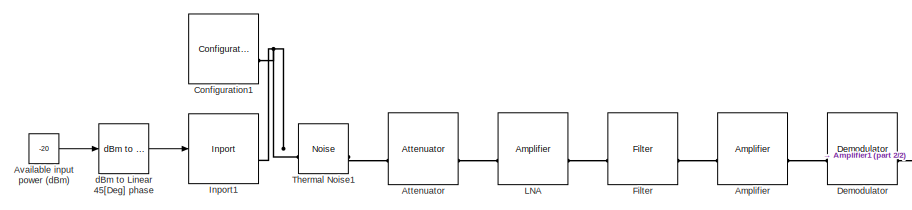
[diagram: root canvas - part 1/2, middle left region]
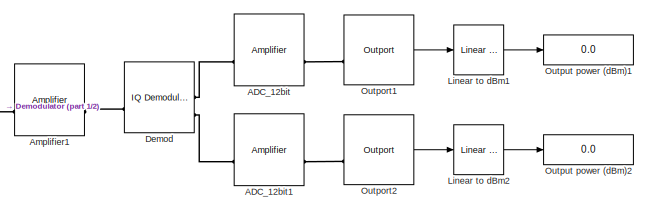
[diagram: root canvas - part 2/2, middle right region]
MODEL slx_749fce83c70b
KIND model
CONFIG AbsTol = auto
CONFIG EnableMultiTasking = off
CONFIG FixedStep = auto
CONFIG MaxStep = auto
CONFIG MinStep = auto
CONFIG RelTol = 1e-3
CONFIG SampleTimeConstraint = Unconstrained
CONFIG SolverName = VariableStepAuto
CONFIG StartTime = 0.0
CONFIG StopTime = 0
BLOCK [Reference] ADC_12bit  REF=simrfV2elements/Amplifier
  SourceBlock = simrfV2elements/Amplifier
  SourceType = Amplifier
  UserDataPersistent = on
BLOCK [Reference] ADC_12bit1  REF=simrfV2elements/Amplifier
  SourceBlock = simrfV2elements/Amplifier
  SourceType = Amplifier
  UserDataPersistent = on
BLOCK [Reference] Amplifier  REF=simrfV2elements/Amplifier
  SourceBlock = simrfV2elements/Amplifier
  SourceType = Amplifier
  UserDataPersistent = on
BLOCK [Reference] Amplifier1  REF=simrfV2elements/Amplifier
  SourceBlock = simrfV2elements/Amplifier
  SourceType = Amplifier
  UserDataPersistent = on
BLOCK [Reference] Attenuator  REF=simrfV2elements/Attenuator
  SourceBlock = simrfV2elements/Attenuator
  SourceType = Attenuator
BLOCK [Constant] Available input power (dBm)
  Value = -20
BLOCK [Reference] Configuration1  REF=simrfV2util1/Configuration
  SourceBlock = simrfV2util1/Configuration
  SourceType = Configuration
BLOCK [Reference] Demod  REF=simrfV2systems/IQ Demodulator
  SourceBlock = simrfV2systems/IQ Demodulator
  SourceType = IQ Demodulator
BLOCK [Reference] Demodulator  REF=simrfV2systems/Demodulator
  SourceBlock = simrfV2systems/Demodulator
  SourceType = Demodulator
BLOCK [Reference] Filter  REF=simrfV2elements/Filter
  SourceBlock = simrfV2elements/Filter
  SourceType = Filter
  UserDataPersistent = on
BLOCK [Reference] Inport1  REF=simrfV2util1/Inport
  SourceBlock = simrfV2util1/Inport
  SourceType = Inport
BLOCK [Reference] LNA  REF=simrfV2elements/Amplifier
  SourceBlock = simrfV2elements/Amplifier
  SourceType = Amplifier
  UserDataPersistent = on
BLOCK [Reference] Linear to dBm1  REF=rfBudgetAnalyzer_lib/Linear to dBm
  SourceBlock = rfBudgetAnalyzer_lib/Linear to dBm
  SourceType = SubSystem
BLOCK [Reference] Linear to dBm2  REF=rfBudgetAnalyzer_lib/Linear to dBm
  SourceBlock = rfBudgetAnalyzer_lib/Linear to dBm
  SourceType = SubSystem
BLOCK [Reference] Outport1  REF=simrfV2util1/Outport
  SourceBlock = simrfV2util1/Outport
  SourceType = Outport
BLOCK [Reference] Outport2  REF=simrfV2util1/Outport
  SourceBlock = simrfV2util1/Outport
  SourceType = Outport
BLOCK [Display] Output power (dBm)1
  Decimation = 1
BLOCK [Display] Output power (dBm)2
  Decimation = 1
BLOCK [Reference] Thermal Noise1  REF=simrfV2sources1/Noise
  SourceBlock = simrfV2sources1/Noise
  SourceType = Noise Source
BLOCK [Reference] dBm to Linear 45[Deg] phase  REF=rfBudgetAnalyzer_lib/dBm to Linear
45[Deg] phase
  SourceBlock = rfBudgetAnalyzer_lib/dBm to Linear\n45[Deg] phase
  SourceType = SubSystem
LINE Available input power (dBm):1 -> dBm to Linear 45[Deg] phase:1
LINE Linear to dBm1:1 -> Output power (dBm)1:1
LINE Linear to dBm2:1 -> Output power (dBm)2:1
LINE Outport1:1 -> Linear to dBm1:1
LINE Outport2:1 -> Linear to dBm2:1
LINE dBm to Linear 45[Deg] phase:1 -> Inport1:1
PLINE ADC_12bit1:LConn1 -- Demod:RConn2
PLINE ADC_12bit1:RConn1 -- Outport2:LConn1
PLINE ADC_12bit:LConn1 -- Demod:RConn1
PLINE ADC_12bit:RConn1 -- Outport1:LConn1
PLINE Amplifier1:LConn1 -- Demodulator:RConn1
PLINE Amplifier1:RConn1 -- Demod:LConn1
PLINE Amplifier:LConn1 -- Filter:RConn1
PLINE Amplifier:RConn1 -- Demodulator:LConn1
PLINE Attenuator:LConn1 -- Thermal Noise1:LConn1
PLINE Attenuator:RConn1 -- LNA:LConn1
PNET net1: Configuration1:LConn1 -- Inport1:RConn1 -- Thermal Noise1:RConn1
PLINE Filter:LConn1 -- LNA:RConn1
note: PNET lines group multi-terminal physical nets as a canonical sorted terminal list (undirected conserving connections); 2-terminal nets keep the pairwise PLINE form
